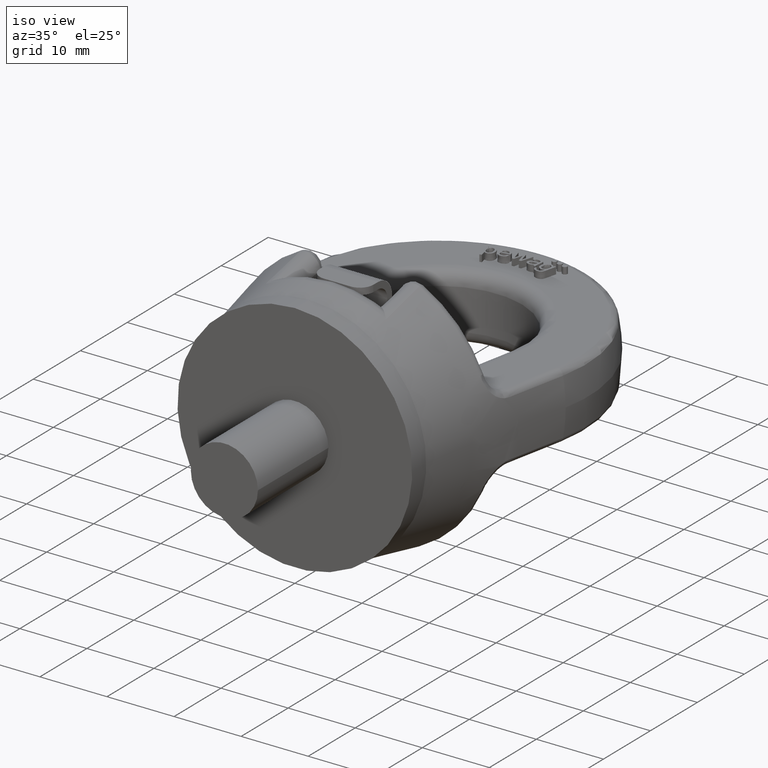
[diagram: clean part render]
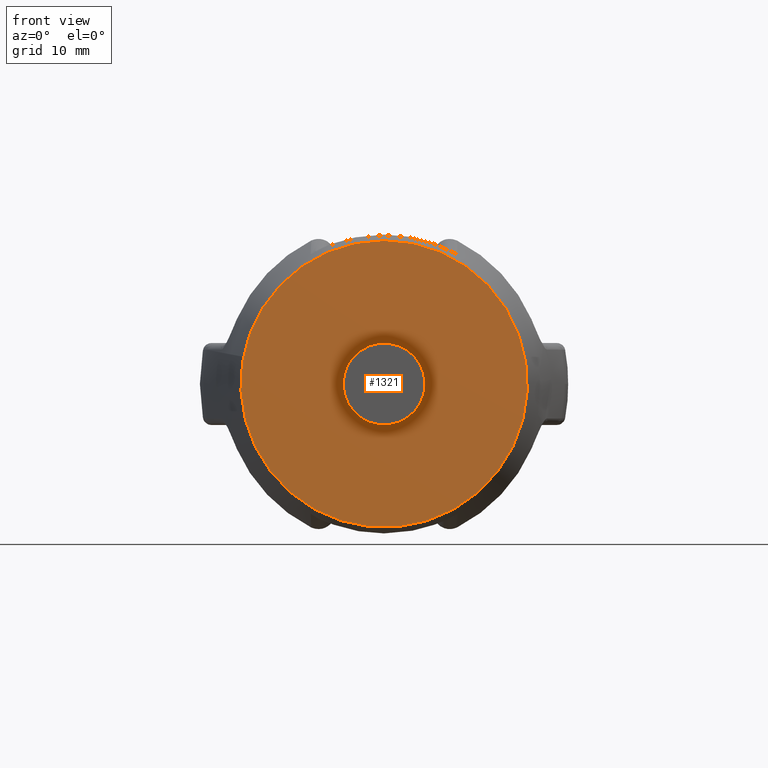
[diagram: tour spotlight — one face highlighted and labeled with its STEP entity id]
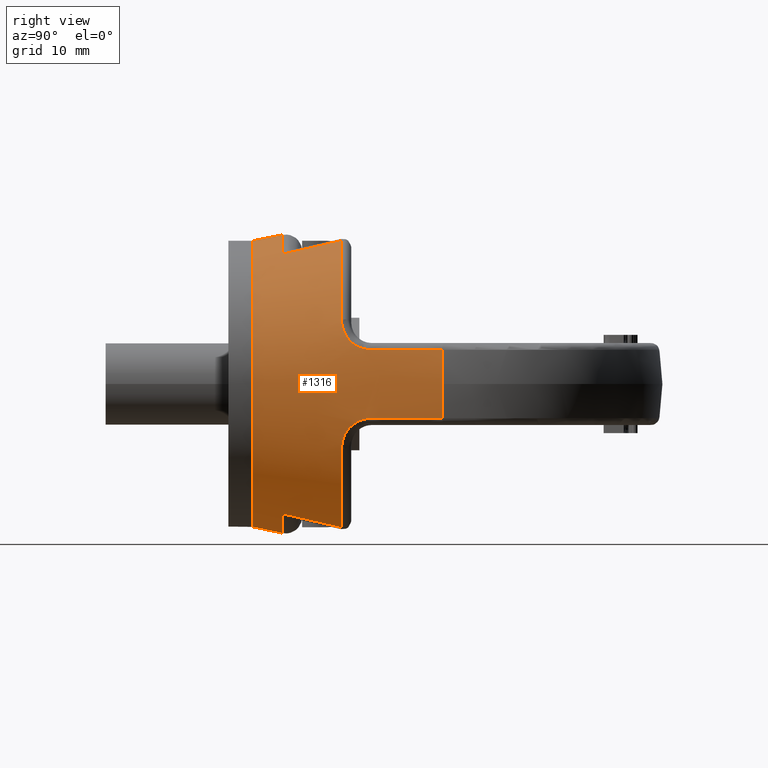
[diagram: tour spotlight — one face highlighted and labeled with its STEP entity id]
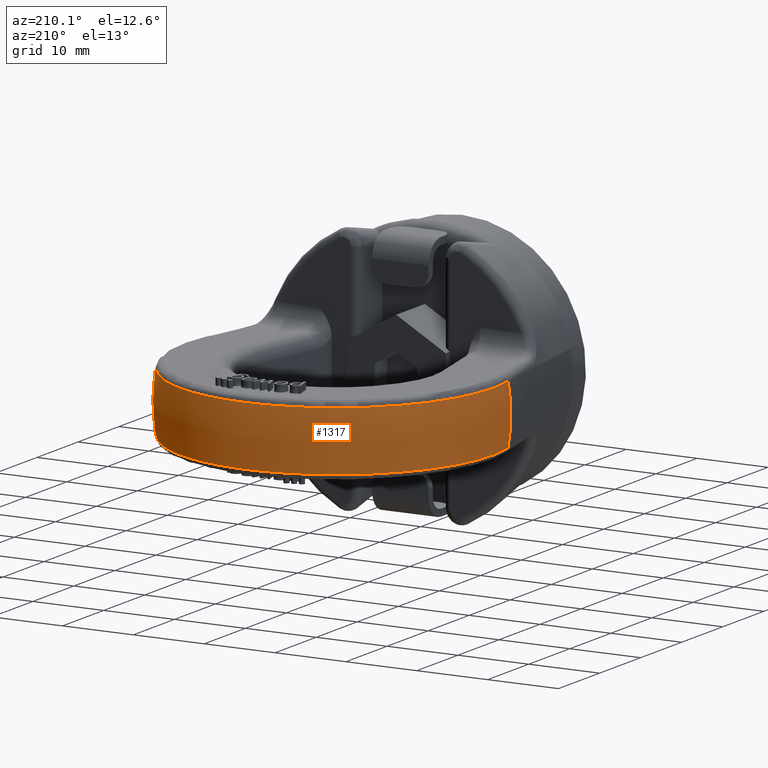
[diagram: tour spotlight — one face highlighted and labeled with its STEP entity id]
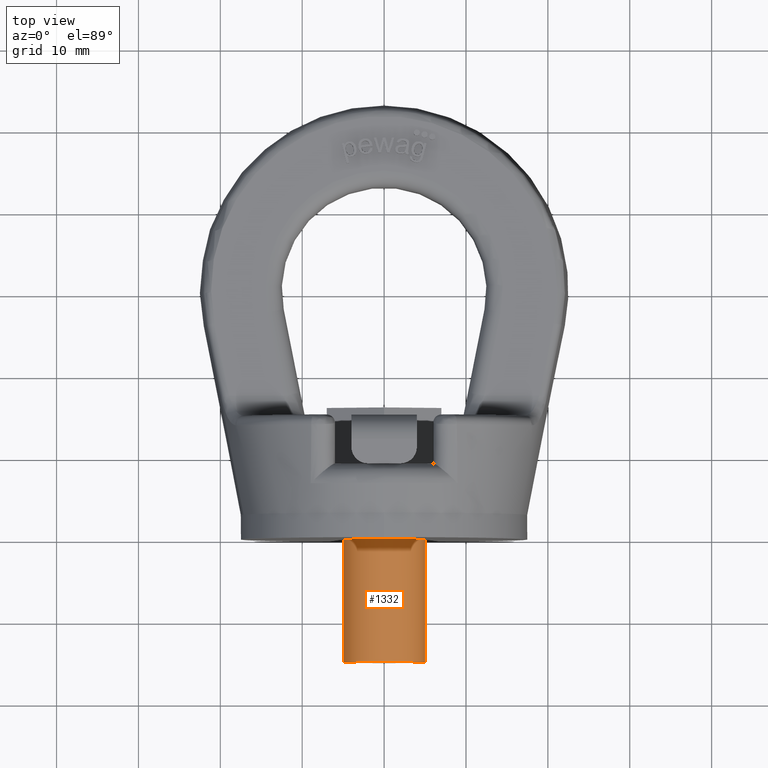
[diagram: tour spotlight — one face highlighted and labeled with its STEP entity id]
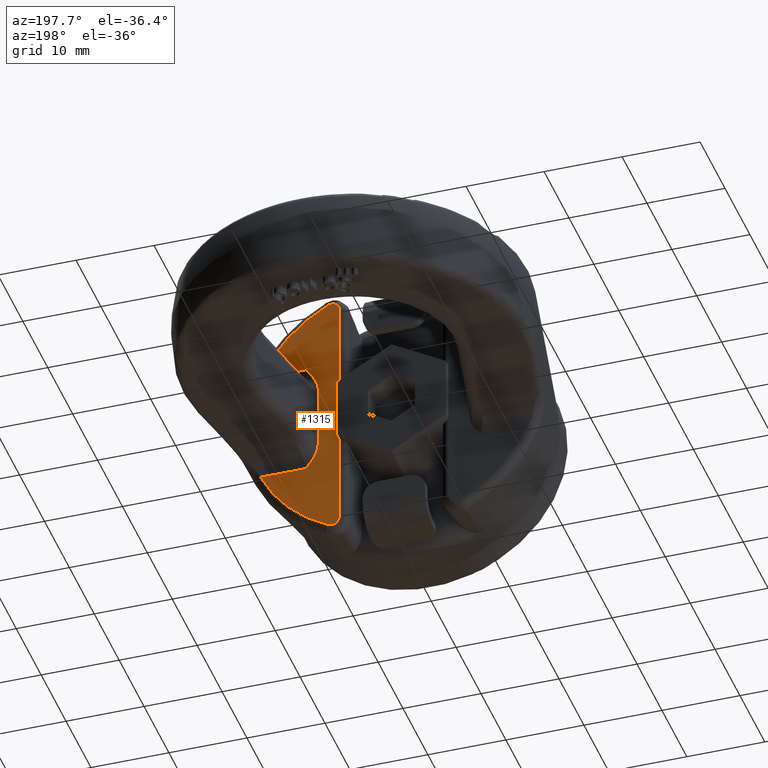
[diagram: tour spotlight — one face highlighted and labeled with its STEP entity id]
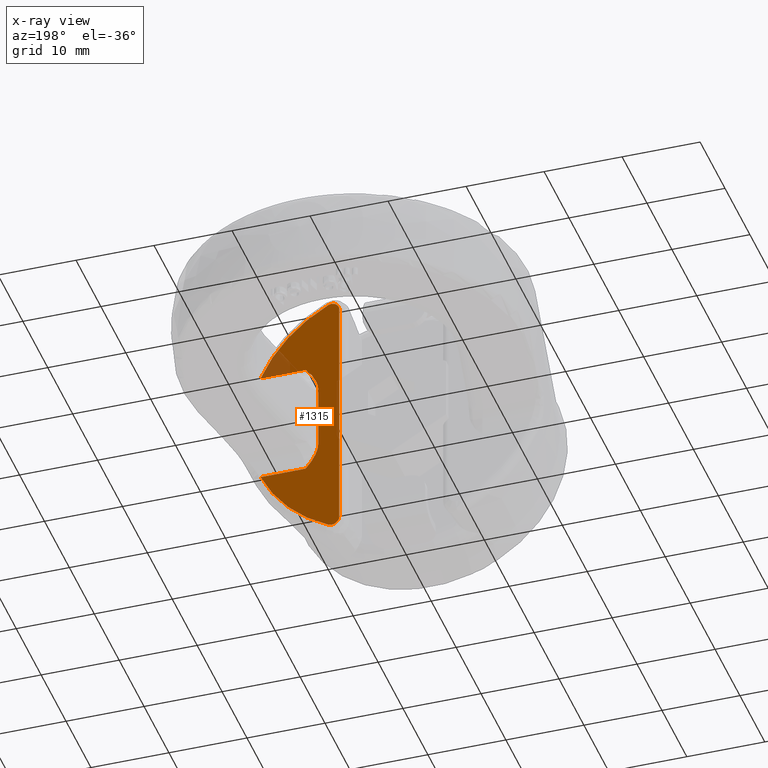
[diagram: x-ray of the same camera — body ghosted, this tour face saturated]
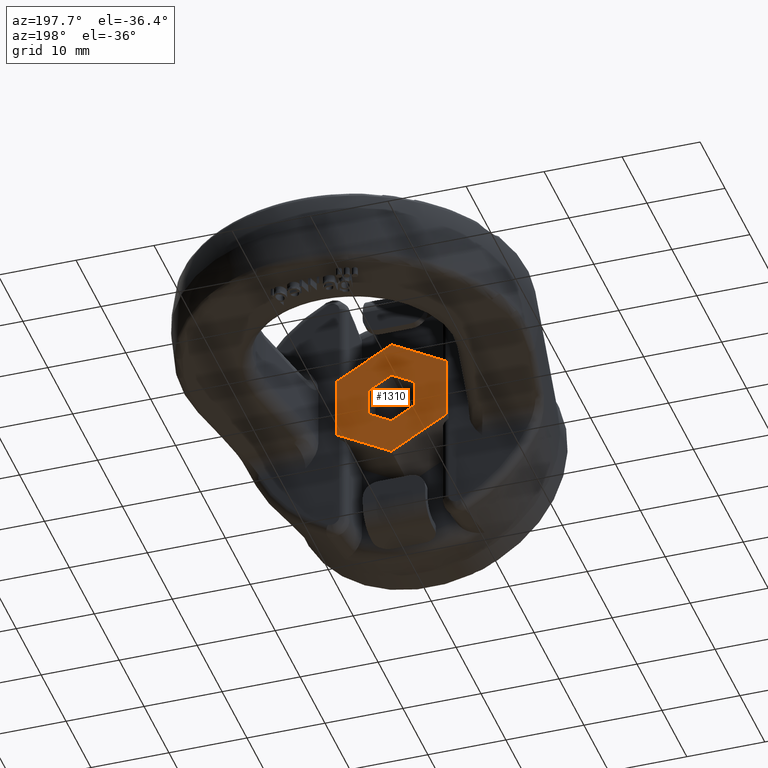
[diagram: tour spotlight — one face highlighted and labeled with its STEP entity id]
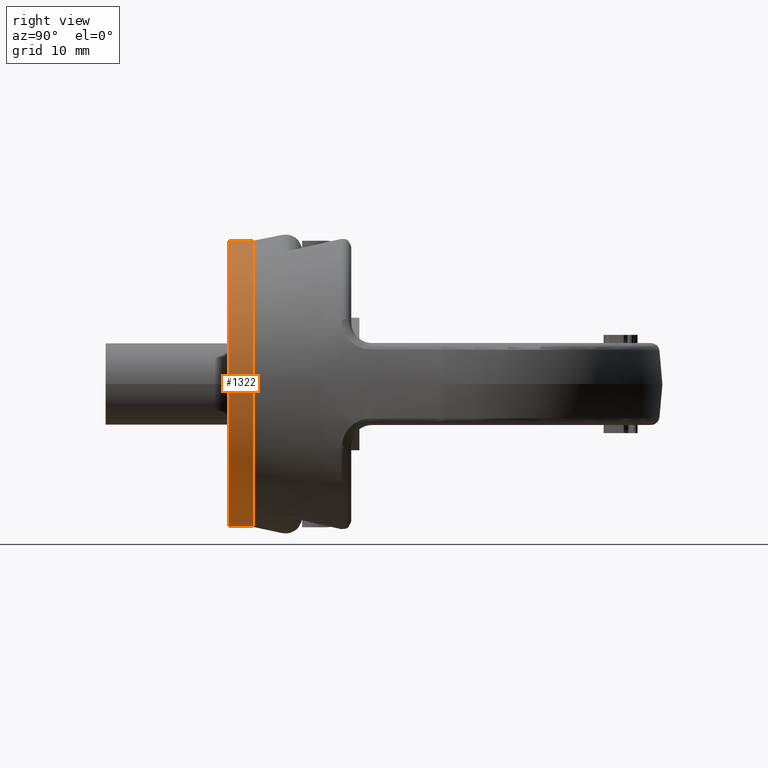
[diagram: tour spotlight — one face highlighted and labeled with its STEP entity id]
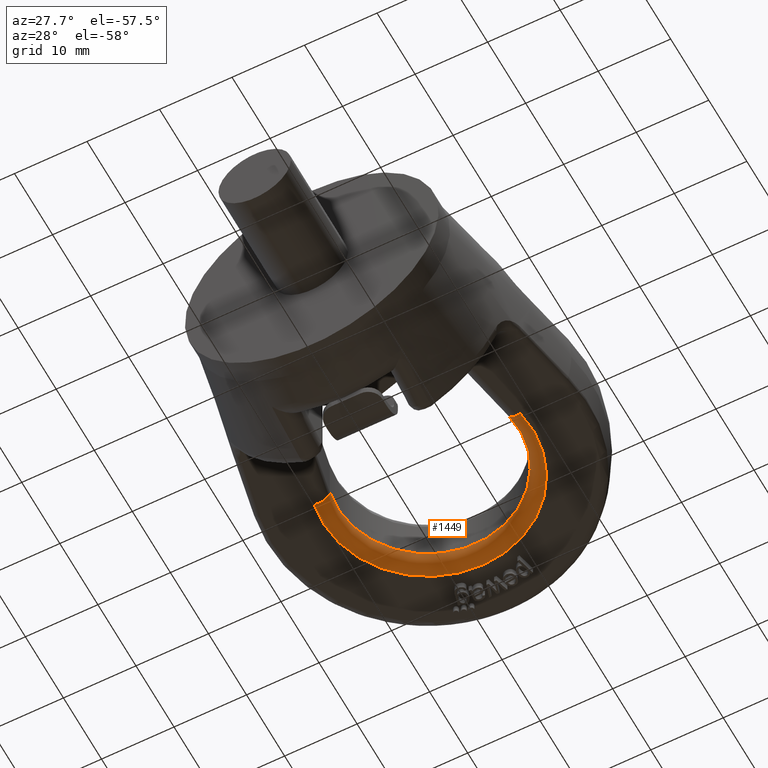
[diagram: tour spotlight — one face highlighted and labeled with its STEP entity id]
A machine part: a face-by-face anatomy tour. The part has 239 B-rep faces; the first image is the clean iso view, then the 8 largest visible faces are spotlighted one at a time (largest first), each with its STEP entity span.

Face 1 — front view, entity #1321. In plain terms, the highlighted planar face has unit normal (0, 1, 0).
Definition (entity closure, byte-faithful):
#1321=ADVANCED_FACE('',(#1769,#1770),#1557,.F.);
#1557=PLANE('',#5134);
#1689=CIRCLE('',#5132,17.5000000000001);
#1690=CIRCLE('',#5133,5.);
#1769=FACE_BOUND('',#1834,.T.);
#1770=FACE_BOUND('',#1835,.T.);
#1834=EDGE_LOOP('',(#2839));
#1835=EDGE_LOOP('',(#2840));
#2839=ORIENTED_EDGE('',*,*,#4383,.F.);
#2840=ORIENTED_EDGE('',*,*,#4384,.T.);
#3991=VERTEX_POINT('',#6889);
#3992=VERTEX_POINT('',#6891);
#4383=EDGE_CURVE('',#3991,#3991,#1689,.T.);
#4384=EDGE_CURVE('',#3992,#3992,#1690,.T.);
#5132=AXIS2_PLACEMENT_3D('',#6888,#5503,#5504);
#5133=AXIS2_PLACEMENT_3D('',#6890,#5505,#5506);
#5134=AXIS2_PLACEMENT_3D('',#6892,#5507,#5508);
#5503=DIRECTION('',(0.,1.,0.));
#5504=DIRECTION('',(0.,0.,1.));
#5505=DIRECTION('',(0.,1.,0.));
#5506=DIRECTION('',(1.,0.,6.12323399573677E-17));
#5507=DIRECTION('',(0.,1.,0.));
#5508=DIRECTION('',(0.,0.,1.));
#6888=CARTESIAN_POINT('',(-1.27403500852703E-13,0.,1.55259211592821E-14));
#6889=CARTESIAN_POINT('',(-1.27403500852703E-13,0.,17.5000000000001));
#6890=CARTESIAN_POINT('',(0.,0.,0.));
#6891=CARTESIAN_POINT('',(5.,0.,3.06161699786838E-16));
#6892=CARTESIAN_POINT('',(0.,0.,0.));

Face 2 — right view, entity #1316. In plain terms, the highlighted conical surface has half-angle 11.18 deg.
Definition (entity closure, byte-faithful):
#1090=CONICAL_SURFACE('',#5119,16.9070627358619,11.180173642183);
#1316=ADVANCED_FACE('',(#1767,#1768),#1090,.T.);
#1676=CIRCLE('',#5110,22.073001942259);
#1677=CIRCLE('',#5111,19.6357807990695);
#1678=CIRCLE('',#5112,18.2139380133096);
#1679=CIRCLE('',#5113,19.6357807990695);
#1680=CIRCLE('',#5114,22.073001942259);
#1681=CIRCLE('',#5115,19.6357807990695);
#1682=CIRCLE('',#5116,18.2139380133096);
#1683=CIRCLE('',#5117,19.6357807990695);
#1684=CIRCLE('',#5118,17.5000000000001);
#1767=FACE_BOUND('',#1828,.T.);
#1768=FACE_BOUND('',#1829,.T.);
#1828=EDGE_LOOP('',(#2798,#2799,#2800,#2801,#2802,#2803,#2804,#2805,#2806,
#2807,#2808,#2809,#2810,#2811,#2812,#2813,#2814,#2815,#2816,#2817));
#1829=EDGE_LOOP('',(#2818));
#2798=ORIENTED_EDGE('',*,*,#4348,.T.);
#2799=ORIENTED_EDGE('',*,*,#4349,.T.);
#2800=ORIENTED_EDGE('',*,*,#4350,.T.);
#2801=ORIENTED_EDGE('',*,*,#4351,.T.);
#2802=ORIENTED_EDGE('',*,*,#4352,.T.);
#2803=ORIENTED_EDGE('',*,*,#4353,.T.);
#2804=ORIENTED_EDGE('',*,*,#4354,.T.);
#2805=ORIENTED_EDGE('',*,*,#4355,.T.);
#2806=ORIENTED_EDGE('',*,*,#4356,.T.);
#2807=ORIENTED_EDGE('',*,*,#4357,.T.);
#2808=ORIENTED_EDGE('',*,*,#4358,.T.);
#2809=ORIENTED_EDGE('',*,*,#4359,.T.);
#2810=ORIENTED_EDGE('',*,*,#4360,.T.);
#2811=ORIENTED_EDGE('',*,*,#4361,.T.);
#2812=ORIENTED_EDGE('',*,*,#4362,.T.);
#2813=ORIENTED_EDGE('',*,*,#4363,.T.);
#2814=ORIENTED_EDGE('',*,*,#4364,.T.);
#2815=ORIENTED_EDGE('',*,*,#4365,.T.);
#2816=ORIENTED_EDGE('',*,*,#4366,.T.);
#2817=ORIENTED_EDGE('',*,*,#4367,.T.);
#2818=ORIENTED_EDGE('',*,*,#4368,.F.);
#3962=VERTEX_POINT('',#6712);
#3963=VERTEX_POINT('',#6713);
#3964=VERTEX_POINT('',#6721);
#3965=VERTEX_POINT('',#6738);
#3966=VERTEX_POINT('',#6740);
#3967=VERTEX_POINT('',#6748);
#3968=VERTEX_POINT('',#6750);
#3969=VERTEX_POINT('',#6758);
#3970=VERTEX_POINT('',#6760);
#3971=VERTEX_POINT('',#6777);
#3972=VERTEX_POINT('',#6785);
#3973=VERTEX_POINT('',#6787);
#3974=VERTEX_POINT('',#6795);
#3975=VERTEX_POINT('',#6812);
#3976=VERTEX_POINT('',#6814);
#3977=VERTEX_POINT('',#6822);
#3978=VERTEX_POINT('',#6824);
#3979=VERTEX_POINT('',#6832);
#3980=VERTEX_POINT('',#6834);
#3981=VERTEX_POINT('',#6851);
#3982=VERTEX_POINT('',#6860);
#4348=EDGE_CURVE('',#3962,#3963,#1676,.T.);
#4349=EDGE_CURVE('',#3963,#3964,#4863,.T.);
#4350=EDGE_CURVE('',#3964,#3965,#4864,.T.);
#4351=EDGE_CURVE('',#3965,#3966,#1677,.T.);
#4352=EDGE_CURVE('',#3966,#3967,#4865,.T.);
#4353=EDGE_CURVE('',#3967,#3968,#1678,.T.);
#4354=EDGE_CURVE('',#3968,#3969,#4866,.T.);
#4355=EDGE_CURVE('',#3969,#3970,#1679,.T.);
#4356=EDGE_CURVE('',#3970,#3971,#4867,.T.);
#4357=EDGE_CURVE('',#3971,#3972,#4868,.T.);
#4358=EDGE_CURVE('',#3972,#3973,#1680,.T.);
#4359=EDGE_CURVE('',#3973,#3974,#4869,.T.);
#4360=EDGE_CURVE('',#3974,#3975,#4870,.T.);
#4361=EDGE_CURVE('',#3975,#3976,#1681,.T.);
#4362=EDGE_CURVE('',#3976,#3977,#4871,.T.);
#4363=EDGE_CURVE('',#3977,#3978,#1682,.T.);
#4364=EDGE_CURVE('',#3978,#3979,#4872,.T.);
#4365=EDGE_CURVE('',#3979,#3980,#1683,.T.);
#4366=EDGE_CURVE('',#3980,#3981,#4873,.T.);
#4367=EDGE_CURVE('',#3981,#3962,#4874,.T.);
#4368=EDGE_CURVE('',#3982,#3982,#1684,.T.);
#4863=B_SPLINE_CURVE_WITH_KNOTS('',3,(#6714,#6715,#6716,#6717,#6718,#6719,
#6720),.UNSPECIFIED.,.F.,.F.,(4,3,4),(0.,0.221983215202601,1.),
 .UNSPECIFIED.);
#4864=B_SPLINE_CURVE_WITH_KNOTS('',3,(#6722,#6723,#6724,#6725,#6726,#6727,
#6728,#6729,#6730,#6731,#6732,#6733,#6734,#6735,#6736,#6737),
 .UNSPECIFIED.,.F.,.F.,(4,3,3,3,3,4),(0.,0.0695872635101965,0.286580988228235,
0.515763328684725,0.756825802791796,1.),.UNSPECIFIED.);
#4865=B_SPLINE_CURVE_WITH_KNOTS('',3,(#6741,#6742,#6743,#6744,#6745,#6746,
#6747),.UNSPECIFIED.,.F.,.F.,(4,3,4),(0.,0.268616871488611,1.),
 .UNSPECIFIED.);
#4866=B_SPLINE_CURVE_WITH_KNOTS('',3,(#6751,#6752,#6753,#6754,#6755,#6756,
#6757),.UNSPECIFIED.,.F.,.F.,(4,3,4),(0.,0.731383128511389,1.),
 .UNSPECIFIED.);
#4867=B_SPLINE_CURVE_WITH_KNOTS('',3,(#6761,#6762,#6763,#6764,#6765,#6766,
#6767,#6768,#6769,#6770,#6771,#6772,#6773,#6774,#6775,#6776),
 .UNSPECIFIED.,.F.,.F.,(4,3,3,3,3,4),(0.,0.134114242084923,0.363639692574574,
0.582441702054789,0.792257523294553,1.),.UNSPECIFIED.);
#4868=B_SPLINE_CURVE_WITH_KNOTS('',3,(#6778,#6779,#6780,#6781,#6782,#6783,
#6784),.UNSPECIFIED.,.F.,.F.,(4,3,4),(0.,0.221983215420783,1.),
 .UNSPECIFIED.);
#4869=B_SPLINE_CURVE_WITH_KNOTS('',3,(#6788,#6789,#6790,#6791,#6792,#6793,
#6794),.UNSPECIFIED.,.F.,.F.,(4,3,4),(0.,0.221983215202601,1.),
 .UNSPECIFIED.);
#4870=B_SPLINE_CURVE_WITH_KNOTS('',3,(#6796,#6797,#6798,#6799,#6800,#6801,
#6802,#6803,#6804,#6805,#6806,#6807,#6808,#6809,#6810,#6811),
 .UNSPECIFIED.,.F.,.F.,(4,3,3,3,3,4),(0.,0.0695872635101965,0.286580988228234,
0.515763328684725,0.756825802791796,1.),.UNSPECIFIED.);
#4871=B_SPLINE_CURVE_WITH_KNOTS('',3,(#6815,#6816,#6817,#6818,#6819,#6820,
#6821),.UNSPECIFIED.,.F.,.F.,(4,3,4),(0.,0.268616871488611,1.),
 .UNSPECIFIED.);
#4872=B_SPLINE_CURVE_WITH_KNOTS('',3,(#6825,#6826,#6827,#6828,#6829,#6830,
#6831),.UNSPECIFIED.,.F.,.F.,(4,3,4),(0.,0.731383128511389,1.),
 .UNSPECIFIED.);
#4873=B_SPLINE_CURVE_WITH_KNOTS('',3,(#6835,#6836,#6837,#6838,#6839,#6840,
#6841,#6842,#6843,#6844,#6845,#6846,#6847,#6848,#6849,#6850),
 .UNSPECIFIED.,.F.,.F.,(4,3,3,3,3,4),(0.,0.134114242084923,0.363639692574574,
0.582441702054789,0.792257523294553,1.),.UNSPECIFIED.);
#4874=B_SPLINE_CURVE_WITH_KNOTS('',3,(#6852,#6853,#6854,#6855,#6856,#6857,
#6858),.UNSPECIFIED.,.F.,.F.,(4,3,4),(0.,0.221983215420783,1.),
 .UNSPECIFIED.);
#5110=AXIS2_PLACEMENT_3D('',#6711,#5453,#5454);
#5111=AXIS2_PLACEMENT_3D('',#6739,#5455,#5456);
#5112=AXIS2_PLACEMENT_3D('',#6749,#5457,#5458);
#5113=AXIS2_PLACEMENT_3D('',#6759,#5459,#5460);
#5114=AXIS2_PLACEMENT_3D('',#6786,#5461,#5462);
#5115=AXIS2_PLACEMENT_3D('',#6813,#5463,#5464);
#5116=AXIS2_PLACEMENT_3D('',#6823,#5465,#5466);
#5117=AXIS2_PLACEMENT_3D('',#6833,#5467,#5468);
#5118=AXIS2_PLACEMENT_3D('',#6859,#5469,#5470);
#5119=AXIS2_PLACEMENT_3D('',#6861,#5471,#5472);
#5453=DIRECTION('',(-2.40383963873025E-15,-1.,0.));
#5454=DIRECTION('',(1.,-2.35770849907234E-15,0.));
#5455=DIRECTION('',(0.,-1.,0.));
#5456=DIRECTION('',(-2.34291072916505E-15,0.,1.));
#5457=DIRECTION('',(-1.44560289664734E-16,-1.,-3.38691853666712E-31));
#5458=DIRECTION('',(-1.,1.42862307539631E-16,-2.34291072916505E-15));
#5459=DIRECTION('',(0.,-1.,0.));
#5460=DIRECTION('',(-2.34291072916505E-15,0.,1.));
#5461=DIRECTION('',(-2.40383963873025E-15,-1.,0.));
#5462=DIRECTION('',(1.,-2.35770849907234E-15,0.));
#5463=DIRECTION('',(0.,-1.,0.));
#5464=DIRECTION('',(0.,0.,-1.));
#5465=DIRECTION('',(1.44560289664734E-16,-1.,0.));
#5466=DIRECTION('',(1.,1.42862307539631E-16,0.));
#5467=DIRECTION('',(0.,-1.,0.));
#5468=DIRECTION('',(0.,0.,-1.));
#5469=DIRECTION('',(0.,-1.,0.));
#5470=DIRECTION('',(0.,0.,1.));
#5471=DIRECTION('',(2.40383963873025E-15,1.,0.));
#5472=DIRECTION('',(-1.,1.87578914699195E-15,0.));
#6711=CARTESIAN_POINT('',(-6.45734671206007E-14,26.1373648723466,0.));
#6712=CARTESIAN_POINT('',(-21.6724347812021,26.1373648723467,4.18604651162793));
#6713=CARTESIAN_POINT('',(-21.672434781202,26.1373648723466,-4.18604651162796));
#6714=CARTESIAN_POINT('',(-21.672434781202,26.1373648723466,-4.18604651162796));
#6715=CARTESIAN_POINT('',(-21.5406633086432,25.4838517290281,-4.18718583237248));
#6716=CARTESIAN_POINT('',(-21.4088426420602,24.8303485388779,-4.18834605955066));
#6717=CARTESIAN_POINT('',(-21.2769697532117,24.1768559292715,-4.18952838715658));
#6718=CARTESIAN_POINT('',(-20.814775727404,21.8864656700838,-4.19367226207111));
#6719=CARTESIAN_POINT('',(-20.3519436377216,19.5962044936565,-4.19808637764071));
#6720=CARTESIAN_POINT('',(-19.888316307205,17.3061051054376,-4.20283180187705));
#6721=CARTESIAN_POINT('',(-19.888316307205,17.3061051054376,-4.20283180187705));
#6722=CARTESIAN_POINT('',(-19.888316307205,17.3061051054376,-4.20283180187705));
#6723=CARTESIAN_POINT('',(-19.8605739823805,17.1690711625992,-4.20311575644989));
#6724=CARTESIAN_POINT('',(-19.8310627417486,17.0321501769281,-4.21189103656201));
#6725=CARTESIAN_POINT('',(-19.8000881721824,16.8968768261502,-4.22891206227255));
#6726=CARTESIAN_POINT('',(-19.7049509818359,16.4813899702548,-4.28119148328134));
#6727=CARTESIAN_POINT('',(-19.5938692177752,16.0732011099137,-4.41470251746434));
#6728=CARTESIAN_POINT('',(-19.4737664815476,15.7105607273751,-4.61086784562616));
#6729=CARTESIAN_POINT('',(-19.3469209800925,15.3275611170766,-4.81804621807913));
#6730=CARTESIAN_POINT('',(-19.205640901566,14.983045492287,-5.10117875078318));
#6731=CARTESIAN_POINT('',(-19.0558053892072,14.7050919990034,-5.42674369906242));
#6732=CARTESIAN_POINT('',(-18.89815125407,14.412634510774,-5.7692970733858));
#6733=CARTESIAN_POINT('',(-18.7259182486898,14.184564166561,-6.16857682720619));
#6734=CARTESIAN_POINT('',(-18.5467321961083,14.0344878820943,-6.58462789427439));
#6735=CARTESIAN_POINT('',(-18.3657833210159,13.8829351554113,-7.00477204881302));
#6736=CARTESIAN_POINT('',(-18.1726819336164,13.8061051054376,-7.45317051754948));
#6737=CARTESIAN_POINT('',(-17.9789360387548,13.8061051054376,-7.89441235960382));
#6738=CARTESIAN_POINT('',(-17.9789360387548,13.8061051054376,-7.89441235960382));
#6739=CARTESIAN_POINT('',(9.42158381437761E-14,13.8061051054376,2.20739298044331E-28));
#6740=CARTESIAN_POINT('',(-8.88811764389246,13.8061051054376,-17.5090048928382));
#6741=CARTESIAN_POINT('',(-8.88811764389246,13.8061051054376,-17.5090048928382));
#6742=CARTESIAN_POINT('',(-8.8945197437602,13.1615013610899,-17.3628764398536));
#6743=CARTESIAN_POINT('',(-8.90105912288387,12.5170091082742,-17.2162611050959));
#6744=CARTESIAN_POINT('',(-8.90774488993428,11.8726395861841,-17.0691158761494));
#6745=CARTESIAN_POINT('',(-8.92594868098205,10.1181710189666,-16.6684735891505));
#6746=CARTESIAN_POINT('',(-8.94523413331673,8.36459730968196,-16.2639273328871));
#6747=CARTESIAN_POINT('',(-8.96581712382927,6.61221021087525,-15.8543893371751));
#6748=CARTESIAN_POINT('',(-8.96581712382927,6.61221021087525,-15.8543893371751));
#6749=CARTESIAN_POINT('',(1.11508807848184E-13,6.61221021087526,2.61255182303915E-28));
#6750=CARTESIAN_POINT('',(8.96581712382932,6.61221021087526,-15.8543893371752));
#6751=CARTESIAN_POINT('',(8.96581712382932,6.61221021087526,-15.8543893371752));
#6752=CARTESIAN_POINT('',(8.94523413331679,8.36459730968197,-16.2639273328872));
#6753=CARTESIAN_POINT('',(8.9259486809821,10.1181710189666,-16.6684735891506));
#6754=CARTESIAN_POINT('',(8.90774488993434,11.8726395861841,-17.0691158761495));
#6755=CARTESIAN_POINT('',(8.90105912288393,12.5170091082742,-17.216261105096));
#6756=CARTESIAN_POINT('',(8.89451974376027,13.1615013610899,-17.3628764398537));
#6757=CARTESIAN_POINT('',(8.88811764389253,13.8061051054376,-17.5090048928382));
#6758=CARTESIAN_POINT('',(8.88811764389253,13.8061051054376,-17.5090048928382));
#6759=CARTESIAN_POINT('',(9.42158381437761E-14,13.8061051054376,2.20739298044331E-28));
#6760=CARTESIAN_POINT('',(17.978936038755,13.8061051054376,-7.89441235960373));
#6761=CARTESIAN_POINT('',(17.978936038755,13.8061051054376,-7.89441235960373));
#6762=CARTESIAN_POINT('',(18.0866533164108,13.8061051054376,-7.64909428435961));
#6763=CARTESIAN_POINT('',(18.1939264048667,13.8295156780585,-7.4024438618945));
#6764=CARTESIAN_POINT('',(18.2986036982959,13.8762492274523,-7.16028149993778));
#6765=CARTESIAN_POINT('',(18.4763139535499,13.955588602016,-6.74916335056197));
#6766=CARTESIAN_POINT('',(18.6496299376606,14.1047710392686,-6.34323665967897));
#6767=CARTESIAN_POINT('',(18.8107516901883,14.3177234066486,-5.97501814573042));
#6768=CARTESIAN_POINT('',(18.964320525103,14.5206931884304,-5.62406064127218));
#6769=CARTESIAN_POINT('',(19.1107021877604,14.7868725807546,-5.29916881997142));
#6770=CARTESIAN_POINT('',(19.244782222766,15.0999764263563,-5.03095283351375));
#6771=CARTESIAN_POINT('',(19.3733066606427,15.4001068354161,-4.77385035820815));
#6772=CARTESIAN_POINT('',(19.4940814950248,15.7513257155585,-4.56260575074639));
#6773=CARTESIAN_POINT('',(19.6021537838534,16.1266094707047,-4.42054604536554));
#6774=CARTESIAN_POINT('',(19.7090449537129,16.4977917603703,-4.28003890646221));
#6775=CARTESIAN_POINT('',(19.8067589370606,16.9032503314004,-4.20366657648031));
#6776=CARTESIAN_POINT('',(19.8883163072051,17.3061051054376,-4.20283180187696));
#6777=CARTESIAN_POINT('',(19.8883163072051,17.3061051054376,-4.20283180187696));
#6778=CARTESIAN_POINT('',(19.8883163072051,17.3061051054376,-4.20283180187696));
#6779=CARTESIAN_POINT('',(20.0205981458655,17.9595147252954,-4.20147784061995));
#6780=CARTESIAN_POINT('',(20.152814948728,18.6129375711198,-4.20015095581437));
#6781=CARTESIAN_POINT('',(20.2849707665183,19.2663727979291,-4.19884958655393));
#6782=CARTESIAN_POINT('',(20.7481564140898,21.5565619378121,-4.19428848910316));
#6783=CARTESIAN_POINT('',(21.2105962031039,23.846902642412,-4.19003965416799));
#6784=CARTESIAN_POINT('',(21.6724347812021,26.1373648723467,-4.18604651162788));
#6785=CARTESIAN_POINT('',(21.6724347812021,26.1373648723467,-4.18604651162788));
#6786=CARTESIAN_POINT('',(-6.45734671206007E-14,26.1373648723466,0.));
#6787=CARTESIAN_POINT('',(21.672434781202,26.1373648723466,4.18604651162791));
#6788=CARTESIAN_POINT('',(21.672434781202,26.1373648723466,4.18604651162791));
#6789=CARTESIAN_POINT('',(21.5406633086432,25.4838517290281,4.18718583237243));
#6790=CARTESIAN_POINT('',(21.4088426420602,24.8303485388779,4.18834605955061));
#6791=CARTESIAN_POINT('',(21.2769697532117,24.1768559292715,4.18952838715653));
#6792=CARTESIAN_POINT('',(20.814775727404,21.8864656700838,4.19367226207106));
#6793=CARTESIAN_POINT('',(20.3519436377216,19.5962044936565,4.19808637764066));
#6794=CARTESIAN_POINT('',(19.888316307205,17.3061051054376,4.202831801877));
#6795=CARTESIAN_POINT('',(19.888316307205,17.3061051054376,4.202831801877));
#6796=CARTESIAN_POINT('',(19.888316307205,17.3061051054376,4.202831801877));
#6797=CARTESIAN_POINT('',(19.8605739823805,17.1690711625992,4.20311575644985));
#6798=CARTESIAN_POINT('',(19.8310627417486,17.0321501769281,4.21189103656197));
#6799=CARTESIAN_POINT('',(19.8000881721824,16.8968768261502,4.2289120622725));
#6800=CARTESIAN_POINT('',(19.7049509818359,16.4813899702548,4.2811914832813));
#6801=CARTESIAN_POINT('',(19.5938692177752,16.0732011099137,4.41470251746429));
#6802=CARTESIAN_POINT('',(19.4737664815476,15.7105607273751,4.61086784562611));
#6803=CARTESIAN_POINT('',(19.3469209800925,15.3275611170766,4.81804621807908));
#6804=CARTESIAN_POINT('',(19.205640901566,14.983045492287,5.10117875078313));
#6805=CARTESIAN_POINT('',(19.0558053892072,14.7050919990034,5.42674369906237));
#6806=CARTESIAN_POINT('',(18.89815125407,14.412634510774,5.76929707338575));
#6807=CARTESIAN_POINT('',(18.7259182486898,14.184564166561,6.16857682720614));
#6808=CARTESIAN_POINT('',(18.5467321961083,14.0344878820943,6.58462789427434));
#6809=CARTESIAN_POINT('',(18.365783321016,13.8829351554113,7.00477204881298));
#6810=CARTESIAN_POINT('',(18.1726819336164,13.8061051054376,7.45317051754943));
#6811=CARTESIAN_POINT('',(17.9789360387548,13.8061051054376,7.89441235960378));
#6812=CARTESIAN_POINT('',(17.9789360387548,13.8061051054376,7.89441235960378));
#6813=CARTESIAN_POINT('',(-9.42158381437761E-14,13.8061051054376,0.));
#6814=CARTESIAN_POINT('',(8.8881176438925,13.8061051054376,17.5090048928382));
#6815=CARTESIAN_POINT('',(8.8881176438925,13.8061051054376,17.5090048928382));
#6816=CARTESIAN_POINT('',(8.89451974376025,13.1615013610899,17.3628764398536));
#6817=CARTESIAN_POINT('',(8.90105912288391,12.5170091082742,17.2162611050959));
#6818=CARTESIAN_POINT('',(8.90774488993432,11.8726395861841,17.0691158761494));
#6819=CARTESIAN_POINT('',(8.92594868098209,10.1181710189666,16.6684735891505));
#6820=CARTESIAN_POINT('',(8.94523413331677,8.36459730968196,16.2639273328871));
#6821=CARTESIAN_POINT('',(8.96581712382931,6.61221021087525,15.8543893371751));
#6822=CARTESIAN_POINT('',(8.96581712382931,6.61221021087525,15.8543893371751));
#6823=CARTESIAN_POINT('',(-1.11508807848184E-13,6.61221021087526,0.));
#6824=CARTESIAN_POINT('',(-8.96581712382928,6.61221021087526,15.8543893371752));
#6825=CARTESIAN_POINT('',(-8.96581712382928,6.61221021087526,15.8543893371752));
#6826=CARTESIAN_POINT('',(-8.94523413331675,8.36459730968197,16.2639273328872));
#6827=CARTESIAN_POINT('',(-8.92594868098207,10.1181710189666,16.6684735891506));
#6828=CARTESIAN_POINT('',(-8.9077448899343,11.8726395861841,17.0691158761495));
#6829=CARTESIAN_POINT('',(-8.90105912288389,12.5170091082742,17.216261105096));
#6830=CARTESIAN_POINT('',(-8.89451974376023,13.1615013610899,17.3628764398537));
#6831=CARTESIAN_POINT('',(-8.88811764389249,13.8061051054376,17.5090048928382));
#6832=CARTESIAN_POINT('',(-8.88811764389249,13.8061051054376,17.5090048928382));
#6833=CARTESIAN_POINT('',(-9.42158381437761E-14,13.8061051054376,0.));
#6834=CARTESIAN_POINT('',(-17.978936038755,13.8061051054376,7.89441235960377));
#6835=CARTESIAN_POINT('',(-17.978936038755,13.8061051054376,7.89441235960377));
#6836=CARTESIAN_POINT('',(-18.0866533164107,13.8061051054376,7.64909428435965));
#6837=CARTESIAN_POINT('',(-18.1939264048667,13.8295156780585,7.40244386189454));
#6838=CARTESIAN_POINT('',(-18.2986036982959,13.8762492274523,7.16028149993782));
#6839=CARTESIAN_POINT('',(-18.4763139535499,13.955588602016,6.74916335056201));
#6840=CARTESIAN_POINT('',(-18.6496299376606,14.1047710392686,6.34323665967902));
#6841=CARTESIAN_POINT('',(-18.8107516901883,14.3177234066486,5.97501814573047));
#6842=CARTESIAN_POINT('',(-18.964320525103,14.5206931884304,5.62406064127222));
#6843=CARTESIAN_POINT('',(-19.1107021877604,14.7868725807546,5.29916881997147));
#6844=CARTESIAN_POINT('',(-19.244782222766,15.0999764263563,5.0309528335138));
#6845=CARTESIAN_POINT('',(-19.3733066606427,15.4001068354161,4.77385035820819));
#6846=CARTESIAN_POINT('',(-19.4940814950248,15.7513257155585,4.56260575074643));
#6847=CARTESIAN_POINT('',(-19.6021537838534,16.1266094707047,4.42054604536558));
#6848=CARTESIAN_POINT('',(-19.7090449537129,16.4977917603703,4.28003890646226));
#6849=CARTESIAN_POINT('',(-19.8067589370606,16.9032503314004,4.20366657648036));
#6850=CARTESIAN_POINT('',(-19.8883163072051,17.3061051054376,4.202831801877));
#6851=CARTESIAN_POINT('',(-19.8883163072051,17.3061051054376,4.202831801877));
#6852=CARTESIAN_POINT('',(-19.8883163072051,17.3061051054376,4.202831801877));
#6853=CARTESIAN_POINT('',(-20.0205981458655,17.9595147252954,4.20147784062));
#6854=CARTESIAN_POINT('',(-20.1528149487279,18.6129375711198,4.20015095581441));
#6855=CARTESIAN_POINT('',(-20.2849707665182,19.2663727979291,4.19884958655397));
#6856=CARTESIAN_POINT('',(-20.7481564140898,21.5565619378121,4.19428848910321));
#6857=CARTESIAN_POINT('',(-21.2105962031039,23.846902642412,4.19003965416804));
#6858=CARTESIAN_POINT('',(-21.6724347812021,26.1373648723467,4.18604651162793));
#6859=CARTESIAN_POINT('',(-1.27403500852703E-13,3.,1.55259211592821E-14));
#6860=CARTESIAN_POINT('',(-1.27403500852703E-13,3.,17.5000000000001));
#6861=CARTESIAN_POINT('',(-1.27403500852703E-13,4.16333634234434E-14,0.));

Face 3 — auxiliary view, entity #1317. In plain terms, the highlighted spherical surface has radius 22.5 mm.
Definition (entity closure, byte-faithful):
#1089=SPHERICAL_SURFACE('',#5122,22.5);
#1096=FACE_OUTER_BOUND('',#1830,.T.);
#1317=ADVANCED_FACE('',(#1096),#1089,.T.);
#1676=CIRCLE('',#5110,22.073001942259);
#1680=CIRCLE('',#5114,22.073001942259);
#1685=CIRCLE('',#5120,22.1071711126161);
#1686=CIRCLE('',#5121,22.1071711126161);
#1830=EDGE_LOOP('',(#2819,#2820,#2821,#2822));
#2819=ORIENTED_EDGE('',*,*,#4348,.F.);
#2820=ORIENTED_EDGE('',*,*,#4369,.T.);
#2821=ORIENTED_EDGE('',*,*,#4358,.F.);
#2822=ORIENTED_EDGE('',*,*,#4370,.T.);
#3962=VERTEX_POINT('',#6712);
#3963=VERTEX_POINT('',#6713);
#3972=VERTEX_POINT('',#6785);
#3973=VERTEX_POINT('',#6787);
#4348=EDGE_CURVE('',#3962,#3963,#1676,.T.);
#4358=EDGE_CURVE('',#3972,#3973,#1680,.T.);
#4369=EDGE_CURVE('',#3962,#3973,#1685,.T.);
#4370=EDGE_CURVE('',#3972,#3963,#1686,.T.);
#5110=AXIS2_PLACEMENT_3D('',#6711,#5453,#5454);
#5114=AXIS2_PLACEMENT_3D('',#6786,#5461,#5462);
#5120=AXIS2_PLACEMENT_3D('',#6862,#5473,#5474);
#5121=AXIS2_PLACEMENT_3D('',#6863,#5475,#5476);
#5122=AXIS2_PLACEMENT_3D('',#6864,#5477,#5478);
#5453=DIRECTION('',(-2.40383963873025E-15,-1.,0.));
#5454=DIRECTION('',(1.,-2.35770849907234E-15,0.));
#5461=DIRECTION('',(-2.40383963873025E-15,-1.,0.));
#5462=DIRECTION('',(1.,-2.35770849907234E-15,0.));
#5473=DIRECTION('',(0.,-1.0842021724855E-16,-1.));
#5474=DIRECTION('',(0.,1.,-1.17703219498774E-16));
#5475=DIRECTION('',(-2.34291072916505E-15,-1.0842021724855E-16,1.));
#5476=DIRECTION('',(-2.78777225301435E-31,1.,1.17703219498774E-16));
#5477=DIRECTION('',(-2.34260729877288E-15,-1.,0.));
#5478=DIRECTION('',(1.,-2.46716227694479E-15,0.));
#6711=CARTESIAN_POINT('',(-6.45734671206007E-14,26.1373648723466,0.));
#6712=CARTESIAN_POINT('',(-21.6724347812021,26.1373648723467,4.18604651162793));
#6713=CARTESIAN_POINT('',(-21.672434781202,26.1373648723466,-4.18604651162796));
#6785=CARTESIAN_POINT('',(21.6724347812021,26.1373648723467,-4.18604651162788));
#6786=CARTESIAN_POINT('',(-6.45734671206007E-14,26.1373648723466,0.));
#6787=CARTESIAN_POINT('',(21.672434781202,26.1373648723466,4.18604651162791));
#6862=CARTESIAN_POINT('',(-1.38050658413677E-30,30.5,4.18604651162791));
#6863=CARTESIAN_POINT('',(9.80753328487695E-15,30.5,-4.18604651162791));
#6864=CARTESIAN_POINT('',(-1.38050658413677E-30,30.5,0.));

Face 4 — top view, entity #1332. In plain terms, the highlighted cylindrical surface (bore or boss wall) has radius 5 mm, axis along (0, 1, 0).
Definition (entity closure, byte-faithful):
#1058=CYLINDRICAL_SURFACE('',#5148,5.);
#1332=ADVANCED_FACE('',(#1773,#1774),#1058,.T.);
#1690=CIRCLE('',#5133,5.);
#1691=CIRCLE('',#5147,5.);
#1773=FACE_BOUND('',#1847,.T.);
#1774=FACE_BOUND('',#1848,.T.);
#1847=EDGE_LOOP('',(#2885));
#1848=EDGE_LOOP('',(#2886));
#2885=ORIENTED_EDGE('',*,*,#4403,.T.);
#2886=ORIENTED_EDGE('',*,*,#4384,.F.);
#3992=VERTEX_POINT('',#6891);
#3999=VERTEX_POINT('',#6928);
#4384=EDGE_CURVE('',#3992,#3992,#1690,.T.);
#4403=EDGE_CURVE('',#3999,#3999,#1691,.T.);
#5133=AXIS2_PLACEMENT_3D('',#6890,#5505,#5506);
#5147=AXIS2_PLACEMENT_3D('',#6927,#5549,#5550);
#5148=AXIS2_PLACEMENT_3D('',#6929,#5551,#5552);
#5505=DIRECTION('',(0.,1.,0.));
#5506=DIRECTION('',(1.,0.,6.12323399573677E-17));
#5549=DIRECTION('',(0.,1.,0.));
#5550=DIRECTION('',(1.,0.,6.12323399573677E-17));
#5551=DIRECTION('',(0.,1.,0.));
#5552=DIRECTION('',(0.,0.,1.));
#6890=CARTESIAN_POINT('',(0.,0.,0.));
#6891=CARTESIAN_POINT('',(5.,0.,3.06161699786838E-16));
#6927=CARTESIAN_POINT('',(0.,-15.,0.));
#6928=CARTESIAN_POINT('',(5.,-15.,3.06161699786838E-16));
#6929=CARTESIAN_POINT('',(0.,-15.,0.));

Face 5 — auxiliary view, entity #1315. An x-ray twin of the same camera follows (body ghosted, this face saturated) — the face is partly hidden behind the body. In plain terms, the highlighted planar face has unit normal (0, 1, 0).
Definition (entity closure, byte-faithful):
#1095=FACE_OUTER_BOUND('',#1827,.T.);
#1315=ADVANCED_FACE('',(#1095),#1554,.T.);
#1554=PLANE('',#5109);
#1674=CIRCLE('',#5107,18.6547584905246);
#1675=CIRCLE('',#5108,18.6547584905246);
#1827=EDGE_LOOP('',(#2786,#2787,#2788,#2789,#2790,#2791,#2792,#2793,#2794,
#2795,#2796,#2797));
#2139=LINE('',#6641,#2415);
#2140=LINE('',#6644,#2416);
#2141=LINE('',#6668,#2417);
#2142=LINE('',#6675,#2418);
#2143=LINE('',#6682,#2419);
#2144=LINE('',#6709,#2420);
#2415=VECTOR('',#5441,1.);
#2416=VECTOR('',#5442,1.);
#2417=VECTOR('',#5445,1.);
#2418=VECTOR('',#5446,1.);
#2419=VECTOR('',#5447,1.);
#2420=VECTOR('',#5450,1.);
#2786=ORIENTED_EDGE('',*,*,#4336,.T.);
#2787=ORIENTED_EDGE('',*,*,#4337,.T.);
#2788=ORIENTED_EDGE('',*,*,#4338,.T.);
#2789=ORIENTED_EDGE('',*,*,#4339,.T.);
#2790=ORIENTED_EDGE('',*,*,#4340,.T.);
#2791=ORIENTED_EDGE('',*,*,#4341,.T.);
#2792=ORIENTED_EDGE('',*,*,#4342,.F.);
#2793=ORIENTED_EDGE('',*,*,#4343,.T.);
#2794=ORIENTED_EDGE('',*,*,#4344,.T.);
#2795=ORIENTED_EDGE('',*,*,#4345,.T.);
#2796=ORIENTED_EDGE('',*,*,#4346,.T.);
#2797=ORIENTED_EDGE('',*,*,#4347,.T.);
#3950=VERTEX_POINT('',#6642);
#3951=VERTEX_POINT('',#6643);
#3952=VERTEX_POINT('',#6645);
#3953=VERTEX_POINT('',#6665);
#3954=VERTEX_POINT('',#6667);
#3955=VERTEX_POINT('',#6669);
#3956=VERTEX_POINT('',#6674);
#3957=VERTEX_POINT('',#6676);
#3958=VERTEX_POINT('',#6681);
#3959=VERTEX_POINT('',#6683);
#3960=VERTEX_POINT('',#6685);
#3961=VERTEX_POINT('',#6708);
#4336=EDGE_CURVE('',#3950,#3951,#2139,.T.);
#4337=EDGE_CURVE('',#3951,#3952,#2140,.T.);
#4338=EDGE_CURVE('',#3952,#3953,#4859,.T.);
#4339=EDGE_CURVE('',#3953,#3954,#1674,.T.);
#4340=EDGE_CURVE('',#3954,#3955,#2141,.T.);
#4341=EDGE_CURVE('',#3955,#3956,#4860,.T.);
#4342=EDGE_CURVE('',#3957,#3956,#2142,.T.);
#4343=EDGE_CURVE('',#3957,#3958,#4861,.T.);
#4344=EDGE_CURVE('',#3958,#3959,#2143,.T.);
#4345=EDGE_CURVE('',#3959,#3960,#1675,.T.);
#4346=EDGE_CURVE('',#3960,#3961,#4862,.T.);
#4347=EDGE_CURVE('',#3961,#3950,#2144,.T.);
#4859=B_SPLINE_CURVE_WITH_KNOTS('',3,(#6646,#6647,#6648,#6649,#6650,#6651,
#6652,#6653,#6654,#6655,#6656,#6657,#6658,#6659,#6660,#6661,#6662,#6663,
#6664),.UNSPECIFIED.,.F.,.F.,(4,3,3,3,3,3,4),(0.,0.17162799520795,0.343374911294347,
0.513163014398311,0.678986783087874,0.841234795187124,1.),.UNSPECIFIED.);
#4860=B_SPLINE_CURVE_WITH_KNOTS('',3,(#6670,#6671,#6672,#6673),
 .UNSPECIFIED.,.F.,.F.,(4,4),(0.,1.),.UNSPECIFIED.);
#4861=B_SPLINE_CURVE_WITH_KNOTS('',3,(#6677,#6678,#6679,#6680),
 .UNSPECIFIED.,.F.,.F.,(4,4),(0.,1.),.UNSPECIFIED.);
#4862=B_SPLINE_CURVE_WITH_KNOTS('',3,(#6686,#6687,#6688,#6689,#6690,#6691,
#6692,#6693,#6694,#6695,#6696,#6697,#6698,#6699,#6700,#6701,#6702,#6703,
#6704,#6705,#6706,#6707),.UNSPECIFIED.,.F.,.F.,(4,3,3,3,3,3,3,4),(0.,0.161337352491137,
0.322735977487369,0.483426317789007,0.645501756668172,0.810867761995414,
0.980105548344404,1.),.UNSPECIFIED.);
#5107=AXIS2_PLACEMENT_3D('',#6666,#5443,#5444);
#5108=AXIS2_PLACEMENT_3D('',#6684,#5448,#5449);
#5109=AXIS2_PLACEMENT_3D('',#6710,#5451,#5452);
#5441=DIRECTION('',(0.,0.,1.));
#5442=DIRECTION('',(0.,0.,1.));
#5443=DIRECTION('',(0.,1.,0.));
#5444=DIRECTION('',(0.,0.,1.));
#5445=DIRECTION('',(-1.,0.,0.));
#5446=DIRECTION('',(0.,0.,1.));
#5447=DIRECTION('',(1.,0.,2.34291072916505E-15));
#5448=DIRECTION('',(0.,1.,0.));
#5449=DIRECTION('',(2.34291072916505E-15,0.,-1.));
#5450=DIRECTION('',(-2.34291072916505E-15,0.,1.));
#5451=DIRECTION('',(0.,1.,0.));
#5452=DIRECTION('',(0.,0.,1.));
#6641=CARTESIAN_POINT('',(7.,15.,24.75));
#6642=CARTESIAN_POINT('',(7.00000000000001,15.,-4.04145188432737));
#6643=CARTESIAN_POINT('',(7.,15.,4.04145188432739));
#6644=CARTESIAN_POINT('',(7.,15.,24.75));
#6645=CARTESIAN_POINT('',(7.,15.,15.7164822920663));
#6646=CARTESIAN_POINT('',(7.,15.,15.7164822920663));
#6647=CARTESIAN_POINT('',(6.99999999999996,15.,15.8332364827708));
#6648=CARTESIAN_POINT('',(7.02001470139839,15.,15.9516045772743));
#6649=CARTESIAN_POINT('',(7.05854716299977,15.,16.0618170559235));
#6650=CARTESIAN_POINT('',(7.09709446057613,15.,16.1720719691723));
#6651=CARTESIAN_POINT('',(7.15528822313486,15.,16.2772434638839));
#6652=CARTESIAN_POINT('',(7.22854157028307,15.,16.3682159167337));
#6653=CARTESIAN_POINT('',(7.3009501494207,15.,16.4581392623276));
#6654=CARTESIAN_POINT('',(7.39016996634836,15.,16.5367217395275));
#6655=CARTESIAN_POINT('',(7.48876317274736,15.,16.5967932807721));
#6656=CARTESIAN_POINT('',(7.58508090947718,15.,16.6554784083369));
#6657=CARTESIAN_POINT('',(7.69309301107033,15.,16.6981415757491));
#6658=CARTESIAN_POINT('',(7.8035788477685,15.,16.7208116109312));
#6659=CARTESIAN_POINT('',(7.9117312020534,15.,16.7430028505502));
#6660=CARTESIAN_POINT('',(8.02527306901851,15.,16.7466577103871));
#6661=CARTESIAN_POINT('',(8.13462487692689,15.,16.7314404517522));
#6662=CARTESIAN_POINT('',(8.24170695904481,15.,16.7165390452741));
#6663=CARTESIAN_POINT('',(8.34765483677831,15.,16.6831760072848));
#6664=CARTESIAN_POINT('',(8.44405882194628,15.,16.63423833397));
#6665=CARTESIAN_POINT('',(8.44405882194625,15.,16.6342383339698));
#6666=CARTESIAN_POINT('',(-1.26937408619406E-13,15.,4.20507007568095E-14));
#6667=CARTESIAN_POINT('',(17.080691272305,15.,7.5));
#6668=CARTESIAN_POINT('',(6.,15.,7.5));
#6669=CARTESIAN_POINT('',(11.3216990566028,15.,7.5));
#6670=CARTESIAN_POINT('',(11.3216990566028,15.,7.5));
#6671=CARTESIAN_POINT('',(10.4535794230895,15.,6.52883463033149));
#6672=CARTESIAN_POINT('',(9.67830094339717,15.,5.36508355430552));
#6673=CARTESIAN_POINT('',(9.67830094339717,15.,4.04881612575817));
#6674=CARTESIAN_POINT('',(9.67830094339717,15.,4.04881612575818));
#6675=CARTESIAN_POINT('',(9.67830094339717,15.,24.75));
#6676=CARTESIAN_POINT('',(9.67830094339718,15.,-4.04881612575816));
#6677=CARTESIAN_POINT('',(9.67830094339718,15.,-4.04881612575816));
#6678=CARTESIAN_POINT('',(9.67830094339718,15.,-5.36508355430551));
#6679=CARTESIAN_POINT('',(10.4535794230998,15.,-6.52883463032227));
#6680=CARTESIAN_POINT('',(11.3216990566028,15.,-7.49999999999998));
#6681=CARTESIAN_POINT('',(11.3216990566028,15.,-7.49999999999998));
#6682=CARTESIAN_POINT('',(9.67830094339719,15.,-7.49999999999998));
#6683=CARTESIAN_POINT('',(17.0806912723052,15.,-7.49999999999996));
#6684=CARTESIAN_POINT('',(1.26937408619407E-13,15.,-4.20507007568092E-14));
#6685=CARTESIAN_POINT('',(8.44405882194631,15.,-16.6342383339699));
#6686=CARTESIAN_POINT('',(8.44405882194631,15.,-16.6342383339699));
#6687=CARTESIAN_POINT('',(8.34619221699086,15.,-16.6839184787626));
#6688=CARTESIAN_POINT('',(8.23846270548613,15.,-16.7175433562264));
#6689=CARTESIAN_POINT('',(8.12968018702864,15.,-16.7321156872059));
#6690=CARTESIAN_POINT('',(8.02087009669293,15.,-16.7466917116699));
#6691=CARTESIAN_POINT('',(7.90802157377461,15.,-16.7425906918226));
#6692=CARTESIAN_POINT('',(7.80055022843088,15.,-16.7201851974507));
#6693=CARTESIAN_POINT('',(7.69351871460707,15.,-16.697871398615));
#6694=CARTESIAN_POINT('',(7.58890554702178,15.,-16.6568211292068));
#6695=CARTESIAN_POINT('',(7.49511637877705,15.,-16.6006317842217));
#6696=CARTESIAN_POINT('',(7.40050566036139,15.,-16.5439502463017));
#6697=CARTESIAN_POINT('',(7.31435407046405,15.,-16.4703743529855));
#6698=CARTESIAN_POINT('',(7.24325030169999,15.,-16.3860639808617));
#6699=CARTESIAN_POINT('',(7.17071217477916,15.,-16.3000528371465));
#6700=CARTESIAN_POINT('',(7.11187395492249,15.,-16.2005900981793));
#6701=CARTESIAN_POINT('',(7.07107082144819,15.,-16.095734001556));
#6702=CARTESIAN_POINT('',(7.02932640812554,15.,-15.9884589992674));
#6703=CARTESIAN_POINT('',(7.00532114393517,15.,-15.8726473672158));
#6704=CARTESIAN_POINT('',(7.00080701080243,15.,-15.7576250008615));
#6705=CARTESIAN_POINT('',(7.00026909658355,15.,-15.7439186779569));
#6706=CARTESIAN_POINT('',(7.00000000000004,15.,-15.7301991663193));
#6707=CARTESIAN_POINT('',(7.00000000000004,15.,-15.7164822920663));
#6708=CARTESIAN_POINT('',(7.00000000000004,15.,-15.7164822920663));
#6709=CARTESIAN_POINT('',(7.00000000000006,15.,-24.75));
#6710=CARTESIAN_POINT('',(6.,15.,24.75));

Face 6 — auxiliary view, entity #1310. In plain terms, the highlighted planar face has unit normal (0, -1, 0).
Definition (entity closure, byte-faithful):
#1310=ADVANCED_FACE('',(#1765,#1766),#1549,.F.);
#1549=PLANE('',#5099);
#1765=FACE_BOUND('',#1821,.T.);
#1766=FACE_BOUND('',#1822,.T.);
#1821=EDGE_LOOP('',(#2747,#2748,#2749,#2750,#2751,#2752));
#1822=EDGE_LOOP('',(#2753,#2754,#2755,#2756,#2757,#2758));
#2113=LINE('',#6501,#2389);
#2114=LINE('',#6504,#2390);
#2115=LINE('',#6506,#2391);
#2116=LINE('',#6508,#2392);
#2117=LINE('',#6510,#2393);
#2118=LINE('',#6512,#2394);
#2119=LINE('',#6513,#2395);
#2120=LINE('',#6516,#2396);
#2121=LINE('',#6518,#2397);
#2122=LINE('',#6520,#2398);
#2123=LINE('',#6522,#2399);
#2124=LINE('',#6524,#2400);
#2389=VECTOR('',#5399,1.);
#2390=VECTOR('',#5400,1.);
#2391=VECTOR('',#5401,1.);
#2392=VECTOR('',#5402,1.);
#2393=VECTOR('',#5403,1.);
#2394=VECTOR('',#5404,1.);
#2395=VECTOR('',#5405,1.);
#2396=VECTOR('',#5406,1.);
#2397=VECTOR('',#5407,1.);
#2398=VECTOR('',#5408,1.);
#2399=VECTOR('',#5409,1.);
#2400=VECTOR('',#5410,1.);
#2747=ORIENTED_EDGE('',*,*,#4299,.F.);
#2748=ORIENTED_EDGE('',*,*,#4300,.F.);
#2749=ORIENTED_EDGE('',*,*,#4301,.F.);
#2750=ORIENTED_EDGE('',*,*,#4302,.F.);
#2751=ORIENTED_EDGE('',*,*,#4303,.F.);
#2752=ORIENTED_EDGE('',*,*,#4304,.F.);
#2753=ORIENTED_EDGE('',*,*,#4305,.F.);
#2754=ORIENTED_EDGE('',*,*,#4306,.F.);
#2755=ORIENTED_EDGE('',*,*,#4307,.F.);
#2756=ORIENTED_EDGE('',*,*,#4308,.F.);
#2757=ORIENTED_EDGE('',*,*,#4309,.F.);
#2758=ORIENTED_EDGE('',*,*,#4310,.F.);
#3915=VERTEX_POINT('',#6502);
#3916=VERTEX_POINT('',#6503);
#3917=VERTEX_POINT('',#6505);
#3918=VERTEX_POINT('',#6507);
#3919=VERTEX_POINT('',#6509);
#3920=VERTEX_POINT('',#6511);
#3921=VERTEX_POINT('',#6514);
#3922=VERTEX_POINT('',#6515);
#3923=VERTEX_POINT('',#6517);
#3924=VERTEX_POINT('',#6519);
#3925=VERTEX_POINT('',#6521);
#3926=VERTEX_POINT('',#6523);
#4299=EDGE_CURVE('',#3915,#3916,#2113,.T.);
#4300=EDGE_CURVE('',#3917,#3915,#2114,.T.);
#4301=EDGE_CURVE('',#3918,#3917,#2115,.T.);
#4302=EDGE_CURVE('',#3919,#3918,#2116,.T.);
#4303=EDGE_CURVE('',#3920,#3919,#2117,.T.);
#4304=EDGE_CURVE('',#3916,#3920,#2118,.T.);
#4305=EDGE_CURVE('',#3921,#3922,#2119,.T.);
#4306=EDGE_CURVE('',#3923,#3921,#2120,.T.);
#4307=EDGE_CURVE('',#3924,#3923,#2121,.T.);
#4308=EDGE_CURVE('',#3925,#3924,#2122,.T.);
#4309=EDGE_CURVE('',#3926,#3925,#2123,.T.);
#4310=EDGE_CURVE('',#3922,#3926,#2124,.T.);
#5099=AXIS2_PLACEMENT_3D('',#6525,#5411,#5412);
#5399=DIRECTION('',(0.,0.,1.));
#5400=DIRECTION('',(0.866025403784441,0.,0.499999999999995));
#5401=DIRECTION('',(0.866025403784444,0.,-0.499999999999991));
#5402=DIRECTION('',(0.,0.,-1.));
#5403=DIRECTION('',(-0.866025403784443,0.,-0.499999999999993));
#5404=DIRECTION('',(-0.866025403784442,0.,0.499999999999993));
#5405=DIRECTION('',(-0.866025403784442,0.,-0.499999999999994));
#5406=DIRECTION('',(-1.25192883228097E-16,0.,-1.));
#5407=DIRECTION('',(0.866025403784443,0.,-0.499999999999992));
#5408=DIRECTION('',(0.866025403784443,0.,0.499999999999992));
#5409=DIRECTION('',(-1.25192883228097E-16,0.,1.));
#5410=DIRECTION('',(-0.866025403784444,0.,0.49999999999999));
#5411=DIRECTION('',(0.,-1.,0.));
#5412=DIRECTION('',(0.,0.,-1.));
#6501=CARTESIAN_POINT('',(7.,16.,-4.04145188432739));
#6502=CARTESIAN_POINT('',(7.00000000000001,16.,-4.04145188432737));
#6503=CARTESIAN_POINT('',(7.,16.,4.04145188432739));
#6504=CARTESIAN_POINT('',(1.80493435426896E-14,16.,-8.0829037686547));
#6505=CARTESIAN_POINT('',(1.80701602244013E-14,16.,-8.0829037686547));
#6506=CARTESIAN_POINT('',(-6.99999999999999,16.,-4.04145188432741));
#6507=CARTESIAN_POINT('',(-6.99999999999999,16.,-4.04145188432741));
#6508=CARTESIAN_POINT('',(-7.,16.,4.04145188432739));
#6509=CARTESIAN_POINT('',(-7.,16.,4.04145188432739));
#6510=CARTESIAN_POINT('',(8.88178419700125E-16,16.,8.0829037686547));
#6511=CARTESIAN_POINT('',(8.67361737988404E-16,16.,8.0829037686547));
#6512=CARTESIAN_POINT('',(7.,16.,4.04145188432739));
#6513=CARTESIAN_POINT('',(8.11608084102411E-15,16.,-3.46410161513771));
#6514=CARTESIAN_POINT('',(3.,16.,-1.73205080756886));
#6515=CARTESIAN_POINT('',(8.11608084102411E-15,16.,-3.46410161513771));
#6516=CARTESIAN_POINT('',(3.,16.,-1.73205080756887));
#6517=CARTESIAN_POINT('',(3.,16.,1.73205080756887));
#6518=CARTESIAN_POINT('',(3.,16.,1.73205080756887));
#6519=CARTESIAN_POINT('',(0.,16.,3.46410161513771));
#6520=CARTESIAN_POINT('',(0.,16.,3.46410161513771));
#6521=CARTESIAN_POINT('',(-3.,16.,1.73205080756887));
#6522=CARTESIAN_POINT('',(-3.,16.,1.73205080756887));
#6523=CARTESIAN_POINT('',(-3.,16.,-1.73205080756887));
#6524=CARTESIAN_POINT('',(-3.,16.,-1.73205080756887));
#6525=CARTESIAN_POINT('',(0.,16.,0.));

Face 7 — right view, entity #1322. In plain terms, the highlighted cylindrical surface (bore or boss wall) has radius 17.5 mm, axis along (0, 1, 0).
Definition (entity closure, byte-faithful):
#1057=CYLINDRICAL_SURFACE('',#5135,17.5000000000001);
#1322=ADVANCED_FACE('',(#1771,#1772),#1057,.T.);
#1684=CIRCLE('',#5118,17.5000000000001);
#1689=CIRCLE('',#5132,17.5000000000001);
#1771=FACE_BOUND('',#1836,.T.);
#1772=FACE_BOUND('',#1837,.T.);
#1836=EDGE_LOOP('',(#2841));
#1837=EDGE_LOOP('',(#2842));
#2841=ORIENTED_EDGE('',*,*,#4368,.T.);
#2842=ORIENTED_EDGE('',*,*,#4383,.T.);
#3982=VERTEX_POINT('',#6860);
#3991=VERTEX_POINT('',#6889);
#4368=EDGE_CURVE('',#3982,#3982,#1684,.T.);
#4383=EDGE_CURVE('',#3991,#3991,#1689,.T.);
#5118=AXIS2_PLACEMENT_3D('',#6859,#5469,#5470);
#5132=AXIS2_PLACEMENT_3D('',#6888,#5503,#5504);
#5135=AXIS2_PLACEMENT_3D('',#6893,#5509,#5510);
#5469=DIRECTION('',(0.,-1.,0.));
#5470=DIRECTION('',(0.,0.,1.));
#5503=DIRECTION('',(0.,1.,0.));
#5504=DIRECTION('',(0.,0.,1.));
#5509=DIRECTION('',(0.,1.,0.));
#5510=DIRECTION('',(0.,0.,1.));
#6859=CARTESIAN_POINT('',(-1.27403500852703E-13,3.,1.55259211592821E-14));
#6860=CARTESIAN_POINT('',(-1.27403500852703E-13,3.,17.5000000000001));
#6888=CARTESIAN_POINT('',(-1.27403500852703E-13,0.,1.55259211592821E-14));
#6889=CARTESIAN_POINT('',(-1.27403500852703E-13,0.,17.5000000000001));
#6893=CARTESIAN_POINT('',(-1.27403500852703E-13,-0.3,1.55259211592821E-14));

Face 8 — auxiliary view, entity #1449. In plain terms, the highlighted toroidal blend (fillet) surface has major radius 14.5 mm and minor (blend) radius 2 mm.
Definition (entity closure, byte-faithful):
#1023=TOROIDAL_SURFACE('',#5260,14.5,2.);
#1217=FACE_OUTER_BOUND('',#1980,.T.);
#1449=ADVANCED_FACE('',(#1217),#1023,.T.);
#1688=CIRCLE('',#5124,12.5);
#1712=CIRCLE('',#5223,14.5);
#1726=CIRCLE('',#5257,2.);
#1727=CIRCLE('',#5259,2.);
#1980=EDGE_LOOP('',(#3421,#3422,#3423,#3424));
#3421=ORIENTED_EDGE('',*,*,#4635,.F.);
#3422=ORIENTED_EDGE('',*,*,#4374,.F.);
#3423=ORIENTED_EDGE('',*,*,#4636,.T.);
#3424=ORIENTED_EDGE('',*,*,#4576,.F.);
#3983=VERTEX_POINT('',#6866);
#3986=VERTEX_POINT('',#6871);
#4097=VERTEX_POINT('',#8240);
#4098=VERTEX_POINT('',#8241);
#4374=EDGE_CURVE('',#3986,#3983,#1688,.T.);
#4576=EDGE_CURVE('',#4097,#4098,#1712,.T.);
#4635=EDGE_CURVE('',#3983,#4097,#1726,.T.);
#4636=EDGE_CURVE('',#3986,#4098,#1727,.T.);
#5124=AXIS2_PLACEMENT_3D('',#6872,#5483,#5484);
#5223=AXIS2_PLACEMENT_3D('',#8239,#5800,#5801);
#5257=AXIS2_PLACEMENT_3D('',#8699,#5889,#5890);
#5259=AXIS2_PLACEMENT_3D('',#8701,#5893,#5894);
#5260=AXIS2_PLACEMENT_3D('',#8702,#5895,#5896);
#5483=DIRECTION('',(2.34291072916505E-15,1.0842021724855E-16,-1.));
#5484=DIRECTION('',(-2.46519032881566E-31,1.,1.04083408558608E-16));
#5800=DIRECTION('',(-2.34291072916505E-15,-1.0842021724855E-16,1.));
#5801=DIRECTION('',(-2.12516407656523E-31,1.,1.19636101791504E-16));
#5889=DIRECTION('',(-0.193894894562374,-0.981022308544839,-4.54278428800513E-16));
#5890=DIRECTION('',(0.981022308544839,-0.193894894562374,2.38524477946811E-15));
#5893=DIRECTION('',(-0.193894894562376,0.981022308544839,-4.54278428800516E-16));
#5894=DIRECTION('',(-0.981022308544839,-0.193894894562376,-2.38524477946811E-15));
#5895=DIRECTION('',(-2.34291072916505E-15,-1.0842021724855E-16,1.));
#5896=DIRECTION('',(-2.80135264638143E-31,1.,1.05134756119807E-16));
#6866=CARTESIAN_POINT('',(12.2627788568105,28.0763138179703,-2.99999999999997));
#6871=CARTESIAN_POINT('',(-12.2627788568105,28.0763138179703,-3.00000000000003));
#6872=CARTESIAN_POINT('',(7.02873218749515E-15,30.5,-3.));
#8239=CARTESIAN_POINT('',(1.17145536458252E-14,30.5,-5.));
#8240=CARTESIAN_POINT('',(14.2248234739002,27.6885240288456,-4.99999999999997));
#8241=CARTESIAN_POINT('',(-14.2248234739002,27.6885240288456,-5.00000000000004));
#8699=CARTESIAN_POINT('',(14.2248234739002,27.6885240288456,-2.99999999999997));
#8701=CARTESIAN_POINT('',(-14.2248234739002,27.6885240288456,-3.00000000000004));
#8702=CARTESIAN_POINT('',(7.02873218749515E-15,30.5,-3.));